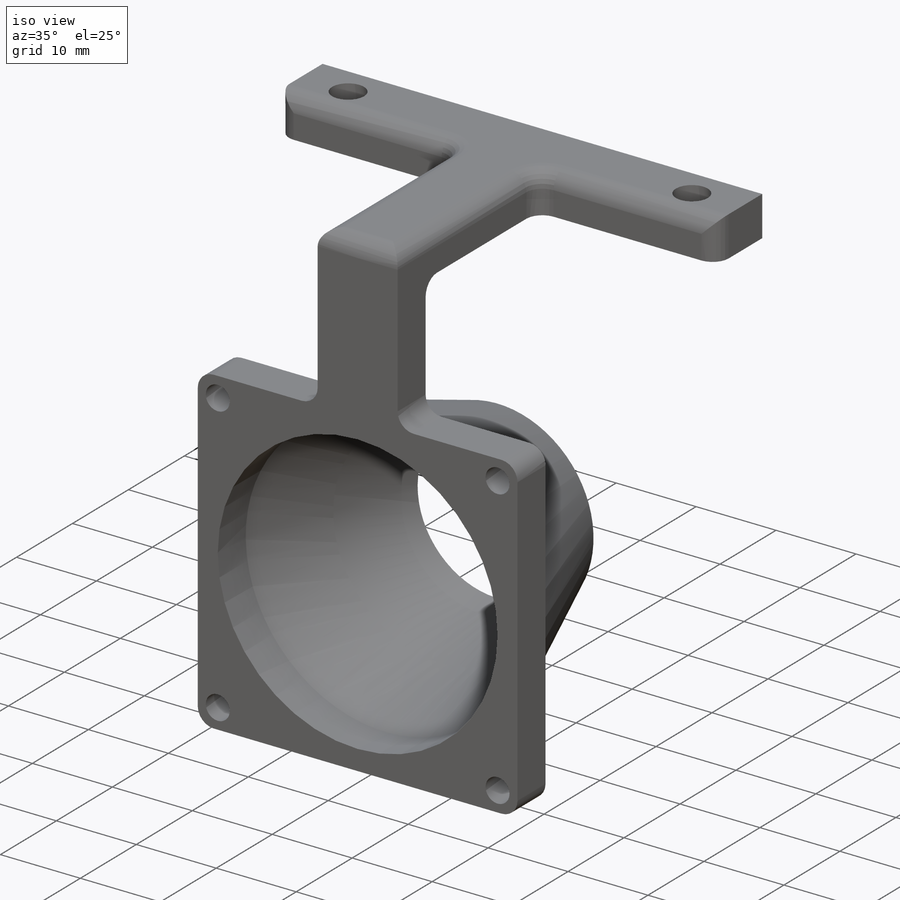
[diagram: iso view]
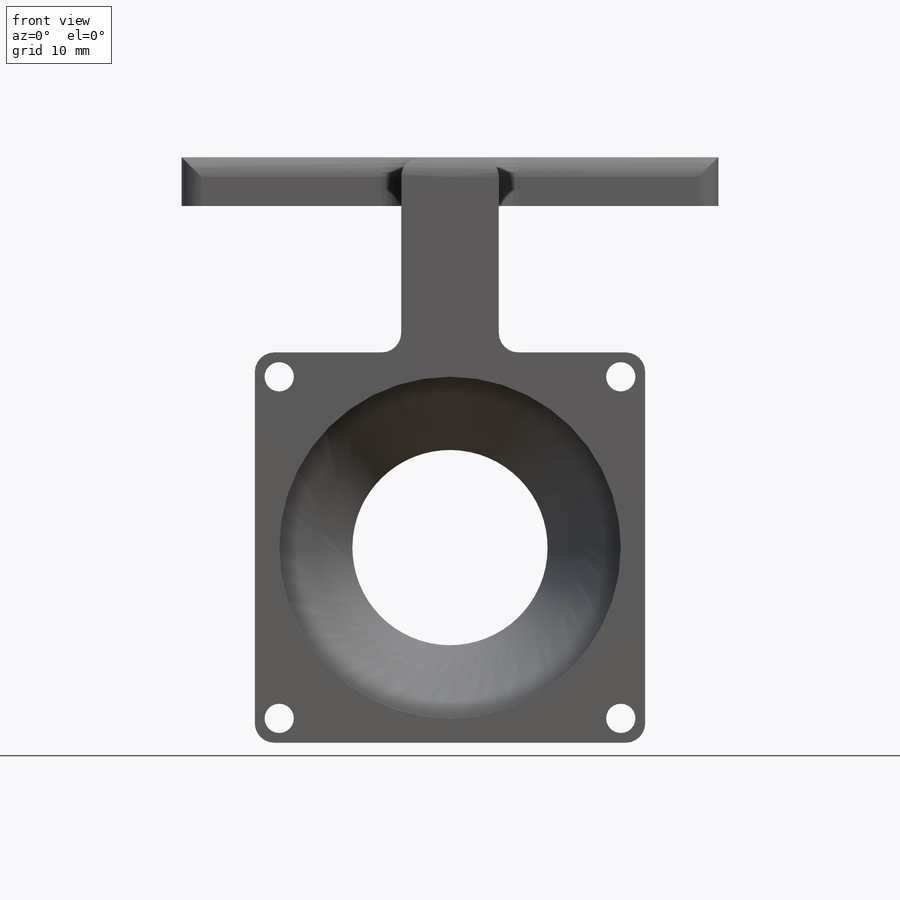
[diagram: front view]
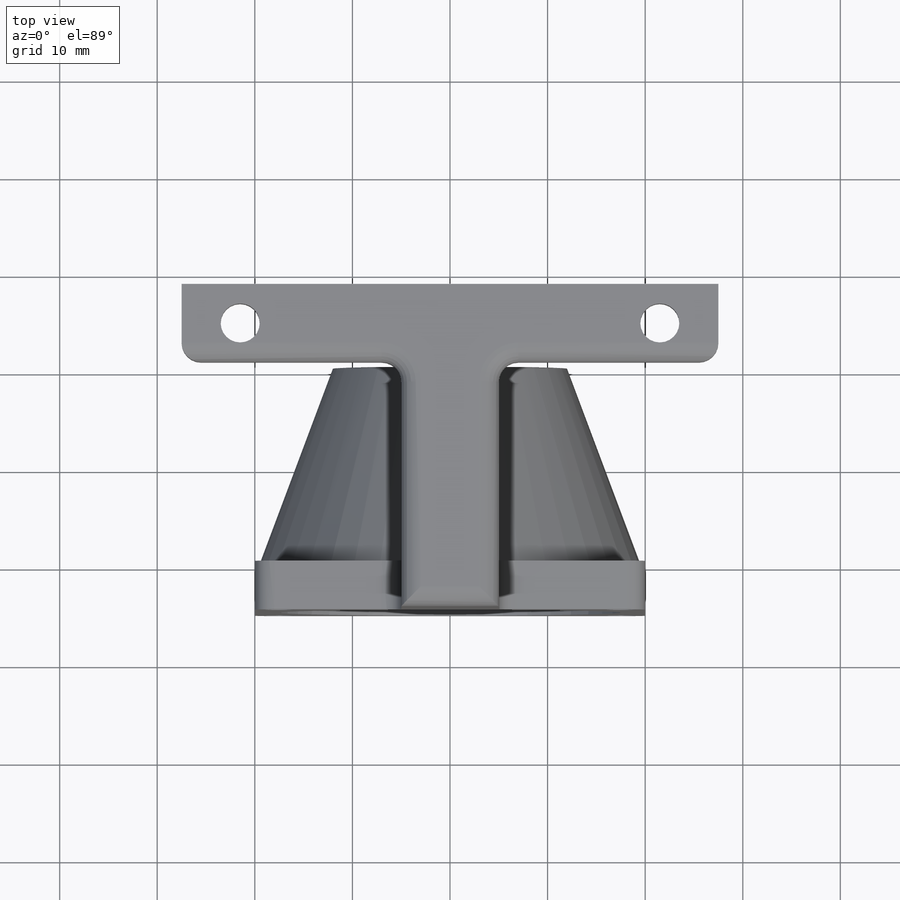
[diagram: top view]
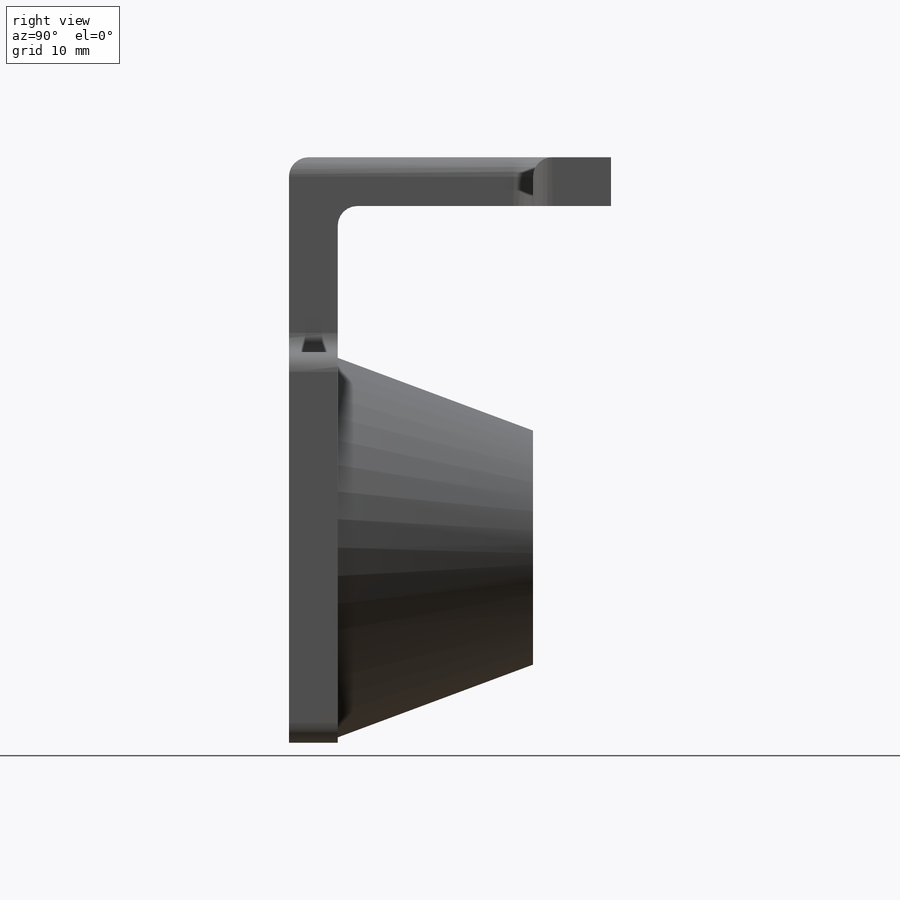
[diagram: right view]
SOLIDWORKS PART (.sldprt)
format: sldprt  version: not decoded by parser v0  size: 337,408 bytes
history: native  units: mm
features: sketch x8, plane x4, extrude x2, material x1, cut_extrude x1, fillet x1 (+10 scaffold rows collapsed)
feature tree (27):
  scaffold x10  (default folders/planes/origin — collapsed)
  material  "Matériau <non spécifié>"
  plane  "Plan de face"
  plane  "Plan de dessus"
  plane  "Plan de droite"
  sketch  "Esquisse1"  dims[c1.D1=4.0mm c1.D2=4.0mm c1.D5=4.0mm c1.D3=43.0mm c1.D4=21.5mm c2.D5=18.0mm c2.D6=43.0mm c2.D7=43.0mm c2.D8=21.5mm]
  sketch  "Esquisse2"  dims[D1=8.0mm D2=55.0mm D3=27.5mm D4=4.0mm D5=10.0mm D6=5.0mm D7=20.0mm]
  extrude  "Boss.-Extru.1"  Depth=5mm
  sketch  "Esquisse3"  dims[c1.D5=~3.270135mm c1.D7=3.0mm c1.D8=3.0mm c1.D9=3.0mm c1.D10=3.0mm c1.D1=20.0mm c1.D2=40.0mm c1.D3=40.0mm c1.D4=20.0mm c2.D5=2.5mm c2.D6=2.5mm c2.D11=2.5mm c2.D12=2.5mm c2.D13=2.5mm c2.D14=2.5mm c2.D15=2.5mm c2.D16=2.5mm]
  extrude  "Boss.-Extru.2"  Depth=5mm
  plane  "Plan1"  Offset=20mm
  sketch  "Esquisse5"  dims[D1=35.0mm D2=20.0mm D3=20.0mm]
  cut_extrude  "Enlèv. mat.-Extru.1"  [1 undecoded]
  sketch  "Esquisse7"  dims[D1=2.0mm]
  sketch  "Esquisse8"  dims[D1=~11.975497mm]
  sketch  "Esquisse9"  dims[D1=2.0mm]
  sketch  "Esquisse10"  dims[D1=0.0mm]
  fillet  "Congé2"  Radius=2mm
decode coverage: 11 of 12 modeling features carry decoded parameters
note: ~ marks probable driven/reference dimensions
note: 1 parameter value undecoded
note: suppression state not decoded; provenance and decode notes live in map.json
